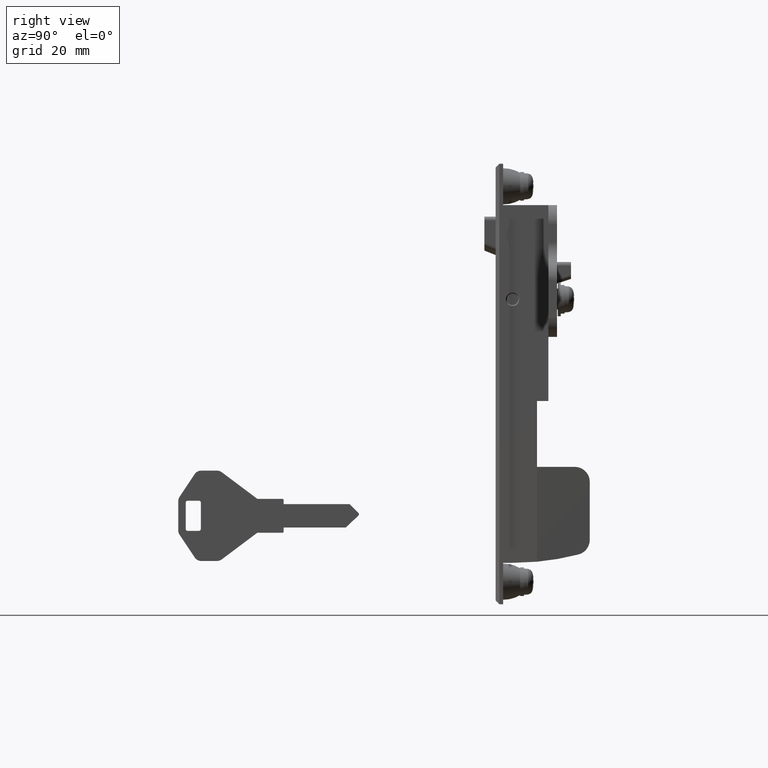
[diagram: clean part render]
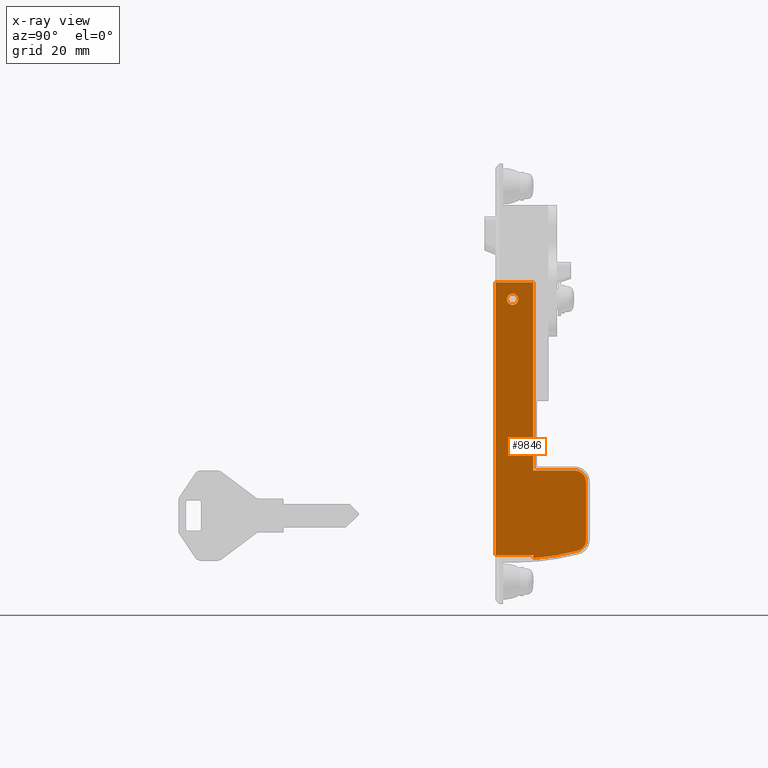
[diagram: x-ray — body ghosted, one internal face saturated and labeled with its STEP entity id]
A machine part, right view, then the same camera in x-ray: the body is ghosted and one INTERNAL B-rep face — a face not visible from any outside direction — is saturated and labeled: STEP entity #9846.
In plain terms, the highlighted face is a freeform B-spline surface patch.
Its self-contained STEP definition (entity closure, byte-faithful):
#6409=CARTESIAN_POINT('',(-8.000057115411337,-9.500000000000000,0.013089804105421));
#6410=VERTEX_POINT('',#6409);
#6416=CARTESIAN_POINT('',(-9.500000000000108,-9.500000000000000,-1.500000000000000));
#6417=VERTEX_POINT('',#6416);
#6418=CARTESIAN_POINT('',(-8.000057115411337,-9.500000000000000,0.013089804105421));
#6419=CARTESIAN_POINT('',(-8.000000000000110,-9.500000000000000,0.006545027088961));
#6420=CARTESIAN_POINT('',(-8.000000000000110,-9.500000000000000,0.0));
#6421=CARTESIAN_POINT('',(-8.000000000000110,-9.500000000000000,-1.500000000000000));
#6422=CARTESIAN_POINT('',(-9.500000000000108,-9.500000000000000,-1.500000000000000));
#6430=(BOUNDED_CURVE()B_SPLINE_CURVE(2,(#6418,#6419,#6420,#6421,#6422),.UNSPECIFIED.,.F.,.U.)B_SPLINE_CURVE_WITH_KNOTS((3,2,3),(0.248460105463531,0.250000000000000,0.500000000000000),.UNSPECIFIED.)CURVE()GEOMETRIC_REPRESENTATION_ITEM()RATIONAL_B_SPLINE_CURVE((0.996414027634120,0.998195901330321,1.0,0.707106781186548,1.0))REPRESENTATION_ITEM(''));
#6431=EDGE_CURVE('',#6410,#6417,#6430,.T.);
#6433=CARTESIAN_POINT('',(-10.988399320654370,-9.500000000000000,-0.186192003791607));
#6434=VERTEX_POINT('',#6433);
#6435=CARTESIAN_POINT('',(-9.500000000000108,-9.500000000000000,-1.500000000000000));
#6436=CARTESIAN_POINT('',(-10.824047899020794,-9.500000000000000,-1.500000000000000));
#6437=CARTESIAN_POINT('',(-10.988399320654366,-9.500000000000000,-0.186192003791607));
#6445=(BOUNDED_CURVE()B_SPLINE_CURVE(2,(#6435,#6436,#6437),.UNSPECIFIED.,.F.,.U.)B_SPLINE_CURVE_WITH_KNOTS((3,3),(0.500000000000000,0.728526070877046),.UNSPECIFIED.)CURVE()GEOMETRIC_REPRESENTATION_ITEM()RATIONAL_B_SPLINE_CURVE((1.0,0.732265054072123,0.954005429979256))REPRESENTATION_ITEM(''));
#6446=EDGE_CURVE('',#6417,#6434,#6445,.T.);
#6481=CARTESIAN_POINT('',(-9.500000000000108,-9.500000000000000,1.500000000000000));
#6482=VERTEX_POINT('',#6481);
#6483=CARTESIAN_POINT('',(-10.988399320654368,-9.500000000000000,-0.186192003791607));
#6484=CARTESIAN_POINT('',(-11.000000000000112,-9.500000000000000,-0.093457391979969));
#6485=CARTESIAN_POINT('',(-11.000000000000110,-9.500000000000000,0.0));
#6486=CARTESIAN_POINT('',(-11.000000000000108,-9.500000000000000,1.500000000000000));
#6487=CARTESIAN_POINT('',(-9.500000000000108,-9.500000000000000,1.500000000000000));
#6495=(BOUNDED_CURVE()B_SPLINE_CURVE(2,(#6483,#6484,#6485,#6486,#6487),.UNSPECIFIED.,.F.,.U.)B_SPLINE_CURVE_WITH_KNOTS((3,2,3),(0.728526070877045,0.750000000000000,1.0),.UNSPECIFIED.)CURVE()GEOMETRIC_REPRESENTATION_ITEM()RATIONAL_B_SPLINE_CURVE((0.954005429979254,0.974841727114424,1.0,0.707106781186548,1.0))REPRESENTATION_ITEM(''));
#6496=EDGE_CURVE('',#6434,#6482,#6495,.T.);
#6498=CARTESIAN_POINT('',(-9.500000000000108,-9.500000000000000,1.500000000000000));
#6499=CARTESIAN_POINT('',(-8.013033185808583,-9.499999999999998,1.500000000000000));
#6500=CARTESIAN_POINT('',(-8.000057115411337,-9.500000000000000,0.013089804105421));
#6508=(BOUNDED_CURVE()B_SPLINE_CURVE(2,(#6498,#6499,#6500),.UNSPECIFIED.,.F.,.U.)B_SPLINE_CURVE_WITH_KNOTS((3,3),(0.0,0.248460105463531),.UNSPECIFIED.)CURVE()GEOMETRIC_REPRESENTATION_ITEM()RATIONAL_B_SPLINE_CURVE((1.0,0.708910879856226,0.996414027634120))REPRESENTATION_ITEM(''));
#6509=EDGE_CURVE('',#6482,#6410,#6508,.T.);
#9529=CARTESIAN_POINT('',(10.0,-9.500000000000000,-48.499800000000000));
#9530=VERTEX_POINT('',#9529);
#9536=CARTESIAN_POINT('',(7.0,-9.500000000000000,-45.499800000000000));
#9537=VERTEX_POINT('',#9536);
#9538=CARTESIAN_POINT('',(10.0,-9.500000000000000,-48.499800000000000));
#9539=CARTESIAN_POINT('',(10.000000000000002,-9.500000000000000,-45.499800000000000));
#9540=CARTESIAN_POINT('',(7.0,-9.500000000000000,-45.499800000000000));
#9548=(BOUNDED_CURVE()B_SPLINE_CURVE(2,(#9538,#9539,#9540),.UNSPECIFIED.,.F.,.U.)CURVE()GEOMETRIC_REPRESENTATION_ITEM()QUASI_UNIFORM_CURVE()RATIONAL_B_SPLINE_CURVE((1.0,0.707106781186548,1.0))REPRESENTATION_ITEM(''));
#9549=EDGE_CURVE('',#9530,#9537,#9548,.T.);
#9571=CARTESIAN_POINT('',(10.0,-9.500000000000000,-63.904000000000003));
#9572=VERTEX_POINT('',#9571);
#9578=CARTESIAN_POINT('',(10.0,-9.500000000000000,-63.904000000000003));
#9579=CARTESIAN_POINT('',(10.0,-9.500000000000000,-48.499800000000000));
#9580=QUASI_UNIFORM_CURVE('',1,(#9578,#9579),.UNSPECIFIED.,.F.,.U.);
#9581=EDGE_CURVE('',#9572,#9530,#9580,.T.);
#9616=CARTESIAN_POINT('',(7.749688402724410,-9.500000000000000,-66.808930568451700));
#9617=VERTEX_POINT('',#9616);
#9623=CARTESIAN_POINT('',(7.749688402724405,-9.500000000000000,-66.808930568451672));
#9624=CARTESIAN_POINT('',(9.999858723331455,-9.500000000000000,-66.227960545897531));
#9625=CARTESIAN_POINT('',(10.000000000000041,-9.500000000000000,-63.904000000000003));
#9633=(BOUNDED_CURVE()B_SPLINE_CURVE(2,(#9623,#9624,#9625),.UNSPECIFIED.,.F.,.U.)CURVE()GEOMETRIC_REPRESENTATION_ITEM()QUASI_UNIFORM_CURVE()RATIONAL_B_SPLINE_CURVE((1.0,0.790585291146007,1.0))REPRESENTATION_ITEM(''));
#9634=EDGE_CURVE('',#9617,#9572,#9633,.T.);
#9669=CARTESIAN_POINT('',(-3.999999999999915,-9.500000000000000,-68.780447803136610));
#9670=VERTEX_POINT('',#9669);
#9676=CARTESIAN_POINT('',(-3.999999999999942,-9.500000000000000,-68.780447803136582));
#9677=CARTESIAN_POINT('',(1.960252926976472,-9.500000000000000,-68.303701176755538));
#9678=CARTESIAN_POINT('',(7.749688402724372,-9.500000000000000,-66.808930568451672));
#9686=(BOUNDED_CURVE()B_SPLINE_CURVE(2,(#9676,#9677,#9678),.UNSPECIFIED.,.F.,.U.)CURVE()GEOMETRIC_REPRESENTATION_ITEM()QUASI_UNIFORM_CURVE()RATIONAL_B_SPLINE_CURVE((1.0,0.996267528267264,1.0))REPRESENTATION_ITEM(''));
#9687=EDGE_CURVE('',#9670,#9617,#9686,.T.);
#9698=CARTESIAN_POINT('',(-3.999999999999915,-9.500000000000000,-67.999799999999993));
#9699=VERTEX_POINT('',#9698);
#9700=CARTESIAN_POINT('',(-3.999999999999915,-9.500000000000000,-67.999799999999993));
#9701=CARTESIAN_POINT('',(-3.999999999999915,-9.500000000000000,-68.780447803136610));
#9702=QUASI_UNIFORM_CURVE('',1,(#9700,#9701),.UNSPECIFIED.,.F.,.U.);
#9703=EDGE_CURVE('',#9699,#9670,#9702,.T.);
#9734=CARTESIAN_POINT('',(-3.999999999999915,-9.500000000000000,-45.499800000000000));
#9735=VERTEX_POINT('',#9734);
#9736=CARTESIAN_POINT('',(7.0,-9.500000000000000,-45.499800000000000));
#9737=CARTESIAN_POINT('',(-3.999999999999915,-9.500000000000000,-45.499800000000000));
#9738=QUASI_UNIFORM_CURVE('',1,(#9736,#9737),.UNSPECIFIED.,.F.,.U.);
#9739=EDGE_CURVE('',#9537,#9735,#9738,.T.);
#9770=CARTESIAN_POINT('',(-3.999999999999895,-9.500000000000000,4.500000000000100));
#9771=VERTEX_POINT('',#9770);
#9772=CARTESIAN_POINT('',(-3.999999999999895,-9.500000000000000,4.500000000000100));
#9773=CARTESIAN_POINT('',(-3.999999999999915,-9.500000000000000,-45.499800000000000));
#9774=QUASI_UNIFORM_CURVE('',1,(#9772,#9773),.UNSPECIFIED.,.F.,.U.);
#9775=EDGE_CURVE('',#9771,#9735,#9774,.T.);
#9790=CARTESIAN_POINT('',(-14.0,-9.500000000000000,-67.999799999999993));
#9791=VERTEX_POINT('',#9790);
#9799=CARTESIAN_POINT('',(-3.999999999999915,-9.500000000000000,-67.999799999999993));
#9800=CARTESIAN_POINT('',(-14.0,-9.500000000000000,-67.999799999999993));
#9801=QUASI_UNIFORM_CURVE('',1,(#9799,#9800),.UNSPECIFIED.,.F.,.U.);
#9802=EDGE_CURVE('',#9699,#9791,#9801,.T.);
#9813=CARTESIAN_POINT('',(-15.198799953483350,-9.500000000000000,-72.440807404680370));
#9814=CARTESIAN_POINT('',(-15.198799953483350,-9.500000000000000,8.160360256722129));
#9815=CARTESIAN_POINT('',(11.198800597213509,-9.500000000000000,-72.440807404680370));
#9816=CARTESIAN_POINT('',(11.198800597213509,-9.500000000000000,8.160360256722129));
#9817=B_SPLINE_SURFACE_WITH_KNOTS('',1,1,((#9813,#9815),(#9814,#9816)),.UNSPECIFIED.,.F.,.F.,.U.,(2,2),(2,2),(0.0,80.601167661402499),(0.0,26.397600550696861),.UNSPECIFIED.);
#9818=CARTESIAN_POINT('',(-14.0,-9.500000000000000,4.500000000000100));
#9819=VERTEX_POINT('',#9818);
#9820=CARTESIAN_POINT('',(-14.0,-9.500000000000000,4.500000000000100));
#9821=CARTESIAN_POINT('',(-14.0,-9.500000000000000,-67.999799999999993));
#9822=QUASI_UNIFORM_CURVE('',1,(#9820,#9821),.UNSPECIFIED.,.F.,.U.);
#9823=EDGE_CURVE('',#9819,#9791,#9822,.T.);
#9824=ORIENTED_EDGE('',*,*,#9823,.F.);
#9825=CARTESIAN_POINT('',(-3.999999999999895,-9.500000000000000,4.500000000000100));
#9826=CARTESIAN_POINT('',(-14.0,-9.500000000000000,4.500000000000100));
#9827=QUASI_UNIFORM_CURVE('',1,(#9825,#9826),.UNSPECIFIED.,.F.,.U.);
#9828=EDGE_CURVE('',#9771,#9819,#9827,.T.);
#9829=ORIENTED_EDGE('',*,*,#9828,.F.);
#9830=ORIENTED_EDGE('',*,*,#9775,.T.);
#9831=ORIENTED_EDGE('',*,*,#9739,.F.);
#9832=ORIENTED_EDGE('',*,*,#9549,.F.);
#9833=ORIENTED_EDGE('',*,*,#9581,.F.);
#9834=ORIENTED_EDGE('',*,*,#9634,.F.);
#9835=ORIENTED_EDGE('',*,*,#9687,.F.);
#9836=ORIENTED_EDGE('',*,*,#9703,.F.);
#9837=ORIENTED_EDGE('',*,*,#9802,.T.);
#9838=EDGE_LOOP('',(#9824,#9829,#9830,#9831,#9832,#9833,#9834,#9835,#9836,#9837));
#9839=FACE_OUTER_BOUND('',#9838,.T.);
#9840=ORIENTED_EDGE('',*,*,#6509,.F.);
#9841=ORIENTED_EDGE('',*,*,#6496,.F.);
#9842=ORIENTED_EDGE('',*,*,#6446,.F.);
#9843=ORIENTED_EDGE('',*,*,#6431,.F.);
#9844=EDGE_LOOP('',(#9840,#9841,#9842,#9843));
#9845=FACE_BOUND('',#9844,.T.);
#9846=ADVANCED_FACE('',(#9839,#9845),#9817,.T.);